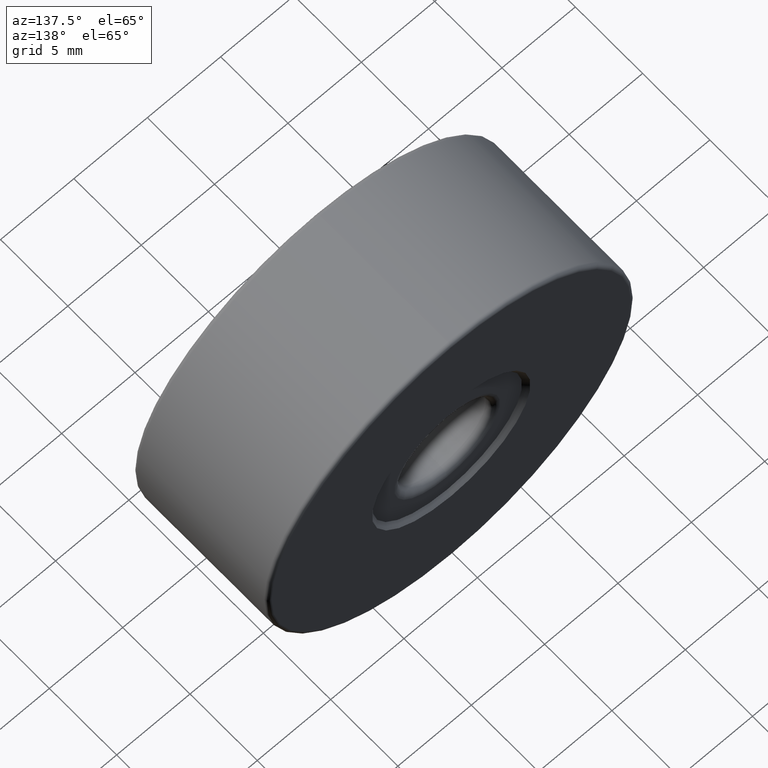
[diagram: clean part render]
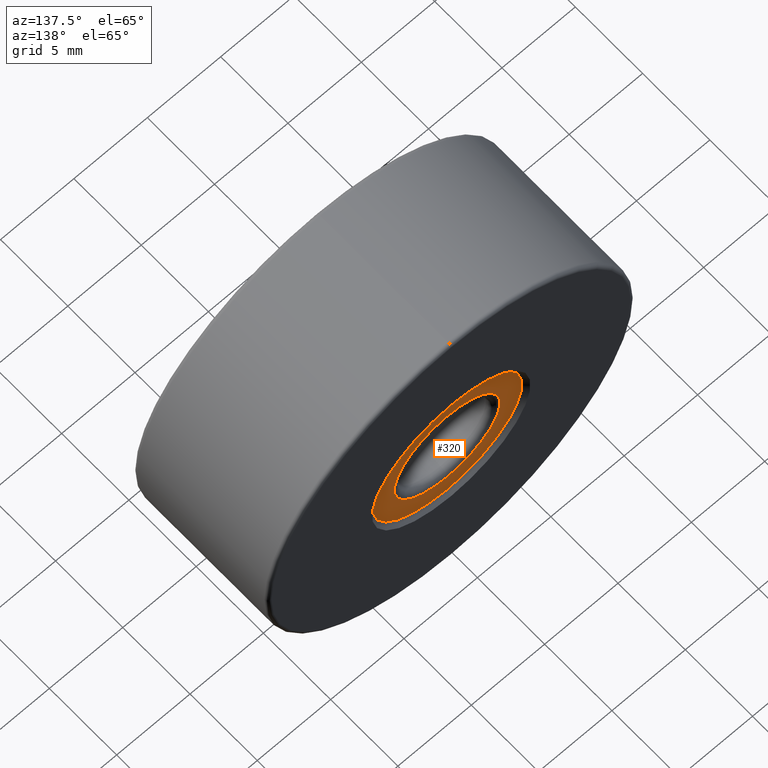
[diagram: same view with one face highlighted and labeled with its STEP entity id]
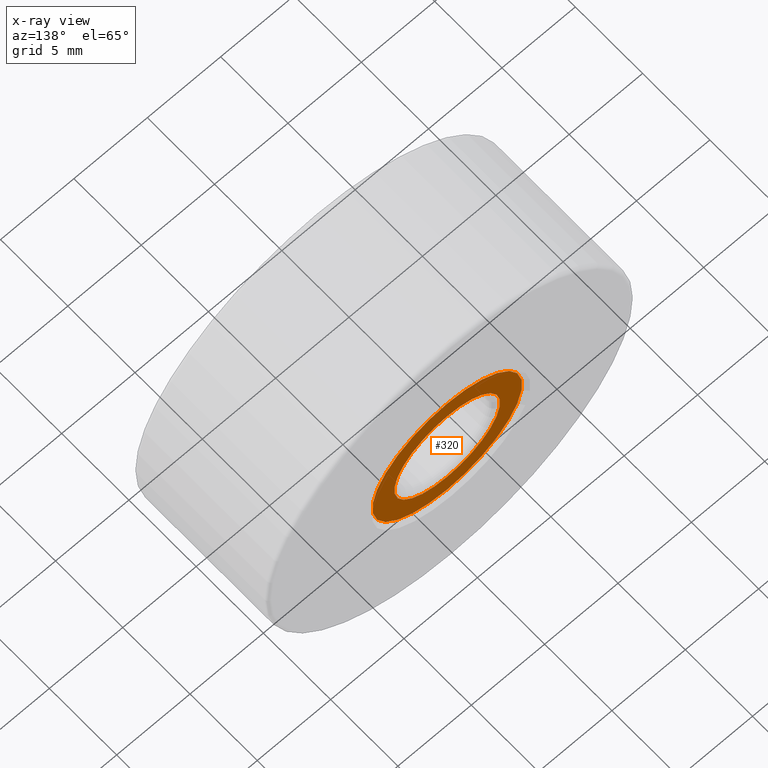
[diagram: x-ray of the same camera — body ghosted, the highlighted face saturated]
A machine part, auxiliary view. The second image highlights one B-rep face of the part: STEP entity #320.
The next image is the same camera in x-ray: the body ghosted, the highlighted face saturated — about 0% of this face is hidden behind the body in this view.
In plain terms, the highlighted planar face has unit normal (0, 1, 0).
Its self-contained STEP definition (entity closure, byte-faithful):
#32 = ORIENTED_EDGE ( 'NONE', *, *, #278, .T. ) ;
#47 = ORIENTED_EDGE ( 'NONE', *, *, #158, .T. ) ;
#48 = CARTESIAN_POINT ( 'NONE',  ( -4.682026255059963837, 3.105024023001725197, 21.40000000000000213 ) ) ;
#66 = AXIS2_PLACEMENT_3D ( 'NONE', #176, #563, #324 ) ;
#100 = VERTEX_POINT ( 'NONE', #110 ) ;
#110 = CARTESIAN_POINT ( 'NONE',  ( -4.682026255059963837, 3.105024023001725197, 19.90000000000000213 ) ) ;
#122 = EDGE_CURVE ( 'NONE', #100, #325, #523, .T. ) ;
#136 = AXIS2_PLACEMENT_3D ( 'NONE', #275, #517, #467 ) ;
#138 = VERTEX_POINT ( 'NONE', #188 ) ;
#152 = CARTESIAN_POINT ( 'NONE',  ( -4.682026255059964726, 3.105024023001725197, 25.00000000000000000 ) ) ;
#158 = EDGE_CURVE ( 'NONE', #325, #100, #437, .T. ) ;
#176 = CARTESIAN_POINT ( 'NONE',  ( -4.682026255059964726, 3.105024023001725197, 25.00000000000000000 ) ) ;
#181 = ORIENTED_EDGE ( 'NONE', *, *, #122, .T. ) ;
#188 = CARTESIAN_POINT ( 'NONE',  ( -4.682026255059964726, 3.105024023001725197, 28.60000000000000142 ) ) ;
#201 = EDGE_CURVE ( 'NONE', #138, #375, #601, .T. ) ;
#263 = DIRECTION ( 'NONE',  ( 0.0000000000000000000, 0.0000000000000000000, 1.000000000000000000 ) ) ;
#270 = EDGE_LOOP ( 'NONE', ( #47, #181 ) ) ;
#274 = AXIS2_PLACEMENT_3D ( 'NONE', #503, #549, #263 ) ;
#275 = CARTESIAN_POINT ( 'NONE',  ( -4.682026255059964726, 3.105024023001725197, 25.00000000000000000 ) ) ;
#278 = EDGE_CURVE ( 'NONE', #375, #138, #546, .T. ) ;
#283 = PLANE ( 'NONE',  #574 ) ;
#320 = ADVANCED_FACE ( 'NONE', ( #339, #474 ), #283, .T. ) ;
#324 = DIRECTION ( 'NONE',  ( 0.0000000000000000000, 0.0000000000000000000, 1.000000000000000000 ) ) ;
#325 = VERTEX_POINT ( 'NONE', #386 ) ;
#339 = FACE_BOUND ( 'NONE', #468, .T. ) ;
#375 = VERTEX_POINT ( 'NONE', #48 ) ;
#386 = CARTESIAN_POINT ( 'NONE',  ( -4.682026255059964726, 3.105024023001725197, 30.10000000000000142 ) ) ;
#437 = CIRCLE ( 'NONE', #136, 5.100000000000000533 ) ;
#467 = DIRECTION ( 'NONE',  ( 0.0000000000000000000, 0.0000000000000000000, 1.000000000000000000 ) ) ;
#468 = EDGE_LOOP ( 'NONE', ( #611, #32 ) ) ;
#470 = DIRECTION ( 'NONE',  ( 0.0000000000000000000, 1.000000000000000000, 0.0000000000000000000 ) ) ;
#474 = FACE_OUTER_BOUND ( 'NONE', #270, .T. ) ;
#480 = CARTESIAN_POINT ( 'NONE',  ( -4.682026255059964726, 3.105024023001725197, 25.00000000000000000 ) ) ;
#485 = DIRECTION ( 'NONE',  ( 0.0000000000000000000, 0.0000000000000000000, 1.000000000000000000 ) ) ;
#496 = DIRECTION ( 'NONE',  ( 0.0000000000000000000, 1.000000000000000000, 0.0000000000000000000 ) ) ;
#503 = CARTESIAN_POINT ( 'NONE',  ( -4.682026255059964726, 3.105024023001725197, 25.00000000000000000 ) ) ;
#517 = DIRECTION ( 'NONE',  ( 0.0000000000000000000, 1.000000000000000000, 0.0000000000000000000 ) ) ;
#519 = DIRECTION ( 'NONE',  ( 0.0000000000000000000, -0.0000000000000000000, 1.000000000000000000 ) ) ;
#523 = CIRCLE ( 'NONE', #579, 5.100000000000000533 ) ;
#546 = CIRCLE ( 'NONE', #274, 3.599999999999999201 ) ;
#549 = DIRECTION ( 'NONE',  ( -0.0000000000000000000, -1.000000000000000000, -0.0000000000000000000 ) ) ;
#563 = DIRECTION ( 'NONE',  ( -0.0000000000000000000, -1.000000000000000000, -0.0000000000000000000 ) ) ;
#574 = AXIS2_PLACEMENT_3D ( 'NONE', #152, #470, #519 ) ;
#579 = AXIS2_PLACEMENT_3D ( 'NONE', #480, #496, #485 ) ;
#601 = CIRCLE ( 'NONE', #66, 3.599999999999999201 ) ;
#611 = ORIENTED_EDGE ( 'NONE', *, *, #201, .T. ) ;